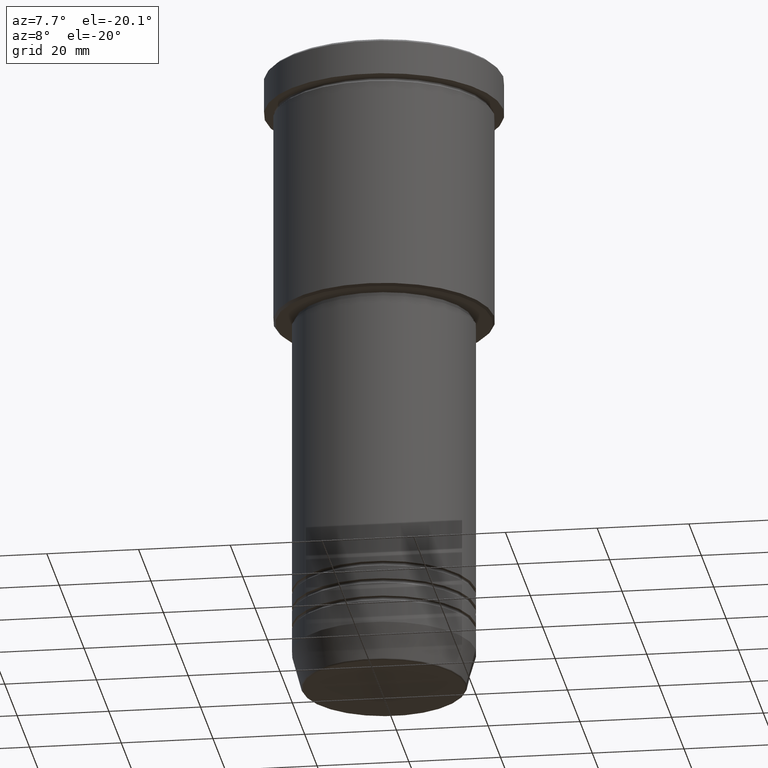
[diagram: clean part render]
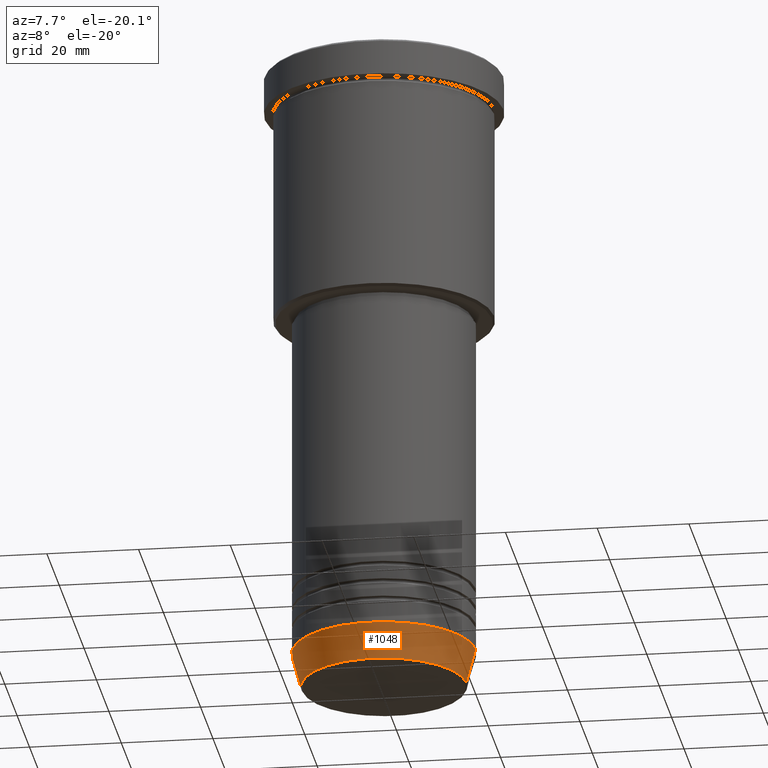
[diagram: same view with one face highlighted and labeled with its STEP entity id]
A machine part, auxiliary view. The second image highlights one B-rep face of the part: STEP entity #1048.
In plain terms, the highlighted conical surface has half-angle 15 deg.
Its self-contained STEP definition (entity closure, byte-faithful):
#11 = EDGE_CURVE ( 'NONE', #456, #702, #310, .T. ) ;
#16 = DIRECTION ( 'NONE',  ( 1.000000000000000000, 0.000000000000000000, 0.000000000000000000 ) ) ;
#44 = AXIS2_PLACEMENT_3D ( 'NONE', #433, #71, #810 ) ;
#64 = EDGE_CURVE ( 'NONE', #171, #120, #657, .T. ) ;
#65 = ORIENTED_EDGE ( 'NONE', *, *, #11, .T. ) ;
#71 = DIRECTION ( 'NONE',  ( -0.000000000000000000, -0.000000000000000000, 1.000000000000000000 ) ) ;
#78 = DIRECTION ( 'NONE',  ( -0.000000000000000000, -0.000000000000000000, 1.000000000000000000 ) ) ;
#82 = CARTESIAN_POINT ( 'NONE',  ( 0.000000000000000000, 0.000000000000000000, -139.6294095225512990 ) ) ;
#97 = CARTESIAN_POINT ( 'NONE',  ( 20.00000000000000355, 0.000000000000000000, -132.0000000000000000 ) ) ;
#120 = VERTEX_POINT ( 'NONE', #690 ) ;
#156 = DIRECTION ( 'NONE',  ( -0.2588190451025212391, 3.169619151431771721E-17, 0.9659258262890680902 ) ) ;
#171 = VERTEX_POINT ( 'NONE', #954 ) ;
#173 = CARTESIAN_POINT ( 'NONE',  ( -20.00000000000000355, 2.449293598294706907E-15, -132.0000000000000000 ) ) ;
#181 = LINE ( 'NONE', #97, #612 ) ;
#202 = CARTESIAN_POINT ( 'NONE',  ( -17.95570587970607335, 2.324116685748021371E-15, -139.6294095225512990 ) ) ;
#252 = AXIS2_PLACEMENT_3D ( 'NONE', #370, #284, #16 ) ;
#284 = DIRECTION ( 'NONE',  ( -0.000000000000000000, -0.000000000000000000, 1.000000000000000000 ) ) ;
#306 = EDGE_CURVE ( 'NONE', #456, #171, #818, .T. ) ;
#310 = CIRCLE ( 'NONE', #495, 17.95570587970607335 ) ;
#370 = CARTESIAN_POINT ( 'NONE',  ( 0.000000000000000000, 0.000000000000000000, -132.0000000000000000 ) ) ;
#382 = DIRECTION ( 'NONE',  ( 0.2588190451025212391, 0.000000000000000000, 0.9659258262890680902 ) ) ;
#418 = ORIENTED_EDGE ( 'NONE', *, *, #725, .T. ) ;
#433 = CARTESIAN_POINT ( 'NONE',  ( 0.000000000000000000, 0.000000000000000000, -132.0000000000000000 ) ) ;
#456 = VERTEX_POINT ( 'NONE', #202 ) ;
#468 = ORIENTED_EDGE ( 'NONE', *, *, #306, .F. ) ;
#488 = CARTESIAN_POINT ( 'NONE',  ( 17.95570587970607335, 0.000000000000000000, -139.6294095225512990 ) ) ;
#495 = AXIS2_PLACEMENT_3D ( 'NONE', #82, #78, #1083 ) ;
#612 = VECTOR ( 'NONE', #382, 1000.000000000000114 ) ;
#657 = CIRCLE ( 'NONE', #252, 20.00000000000000355 ) ;
#676 = VECTOR ( 'NONE', #156, 1000.000000000000114 ) ;
#690 = CARTESIAN_POINT ( 'NONE',  ( 20.00000000000000355, 0.000000000000000000, -132.0000000000000000 ) ) ;
#702 = VERTEX_POINT ( 'NONE', #488 ) ;
#725 = EDGE_CURVE ( 'NONE', #702, #120, #181, .T. ) ;
#773 = CONICAL_SURFACE ( 'NONE', #44, 20.00000000000000355, 0.2617993877991499629 ) ;
#810 = DIRECTION ( 'NONE',  ( 1.000000000000000000, 0.000000000000000000, 0.000000000000000000 ) ) ;
#818 = LINE ( 'NONE', #173, #676 ) ;
#893 = ORIENTED_EDGE ( 'NONE', *, *, #64, .F. ) ;
#954 = CARTESIAN_POINT ( 'NONE',  ( -20.00000000000000355, 2.449293598294706907E-15, -132.0000000000000000 ) ) ;
#1048 = ADVANCED_FACE ( 'NONE', ( #1079 ), #773, .T. ) ;
#1079 = FACE_OUTER_BOUND ( 'NONE', #1091, .T. ) ;
#1083 = DIRECTION ( 'NONE',  ( 1.000000000000000000, 0.000000000000000000, 0.000000000000000000 ) ) ;
#1091 = EDGE_LOOP ( 'NONE', ( #468, #65, #418, #893 ) ) ;